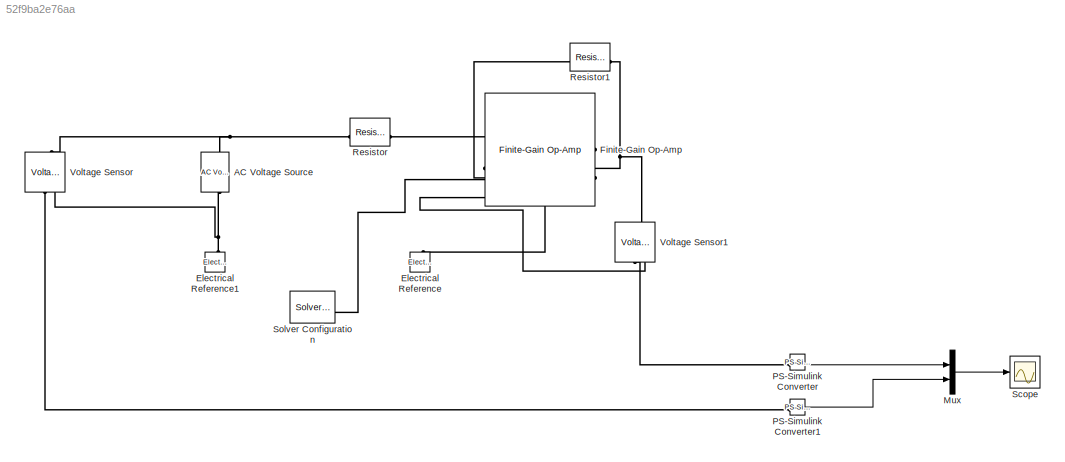
MODEL slx_52f9ba2e76aa
KIND model
CONFIG AbsTol = auto
CONFIG EnableMultiTasking = off
CONFIG FixedStep = auto
CONFIG MaxStep = auto
CONFIG MinStep = auto
CONFIG RelTol = 1e-3
CONFIG SampleTimeConstraint = Unconstrained
CONFIG SolverName = VariableStepAuto
CONFIG StartTime = 0.0
CONFIG StopTime = 10.0
BLOCK [Reference] AC Voltage Source  REF=fl_lib/Electrical/Electrical Sources/AC Voltage Source
  NameLocation = right
  SourceBlock = fl_lib/Electrical/Electrical Sources/AC Voltage Source
  SourceType = AC Voltage Source
BLOCK [Reference] Electrical Reference  REF=fl_lib/Electrical/Electrical Elements/Electrical Reference
  NameLocation = right
  SourceBlock = fl_lib/Electrical/Electrical Elements/Electrical Reference
  SourceType = Electrical Reference
BLOCK [Reference] Electrical Reference1  REF=fl_lib/Electrical/Electrical Elements/Electrical Reference
  NameLocation = right
  SourceBlock = fl_lib/Electrical/Electrical Elements/Electrical Reference
  SourceType = Electrical Reference
BLOCK [Reference] Finite-Gain Op-Amp  REF=ee_lib/Integrated Circuits/Finite-Gain Op-Amp
  SourceBlock = ee_lib/Integrated Circuits/Finite-Gain Op-Amp
  SourceType = Finite-Gain Op-Amp
BLOCK [Mux] Mux
  DisplayOption = bar
  Inputs = 2
BLOCK [Reference] PS-Simulink Converter  REF=nesl_utility/PS-Simulink
Converter
  SourceBlock = nesl_utility/PS-Simulink\nConverter
  SourceType = PS-Simulink\nConverter
BLOCK [Reference] PS-Simulink Converter1  REF=nesl_utility/PS-Simulink
Converter
  SourceBlock = nesl_utility/PS-Simulink\nConverter
  SourceType = PS-Simulink\nConverter
BLOCK [Reference] Resistor  REF=fl_lib/Electrical/Electrical Elements/Resistor
  SourceBlock = fl_lib/Electrical/Electrical Elements/Resistor
  SourceType = Resistor
BLOCK [Reference] Resistor1  REF=fl_lib/Electrical/Electrical Elements/Resistor
  SourceBlock = fl_lib/Electrical/Electrical Elements/Resistor
  SourceType = Resistor
BLOCK [Scope] Scope
  Floating = off
  NumInputPorts = 1
  ScopeSpecificationString = Simulink.scopes.TimeScopeBlockCfg('CurrentConfiguration', extmgr.ConfigurationSet(extmgr.Configuration('Core','General UI',true),extmgr.Configuration('Core','Source UI',true),extmgr.Configuration('Sources','WiredSimulink',true),extmgr.Configuration('Visuals','Time Domain',true,'SerializedDisplays',{struct('MinYLimReal','0.25529','MaxYLimReal','0.69163','YLabelReal','','MinYLimMag','0.25529','MaxYL...<+1412ch>
BLOCK [Reference] Solver Configuration  REF=nesl_utility/Solver
Configuration
  SourceBlock = nesl_utility/Solver\nConfiguration
  SourceType = Solver\nConfiguration
BLOCK [Reference] Voltage Sensor  REF=fl_lib/Electrical/Electrical Sensors/Voltage Sensor
  NameLocation = right
  SourceBlock = fl_lib/Electrical/Electrical Sensors/Voltage Sensor
  SourceType = Voltage Sensor
BLOCK [Reference] Voltage Sensor1  REF=fl_lib/Electrical/Electrical Sensors/Voltage Sensor
  NameLocation = right
  SourceBlock = fl_lib/Electrical/Electrical Sensors/Voltage Sensor
  SourceType = Voltage Sensor
LINE Mux:1 -> Scope:1
LINE PS-Simulink Converter1:1 -> Mux:2
LINE PS-Simulink Converter:1 -> Mux:1
PNET net1: AC Voltage Source:LConn1 -- Resistor:LConn1 -- Voltage Sensor:LConn1
PNET net2: AC Voltage Source:RConn1 -- Electrical Reference1:LConn1 -- Voltage Sensor:RConn2
PNET net3: Electrical Reference:LConn1 -- Finite-Gain Op-Amp:LConn1 -- Solver Configuration:RConn1 -- Voltage Sensor1:RConn2
PNET net4: Finite-Gain Op-Amp:LConn2 -- Resistor1:LConn1 -- Resistor:RConn1
PNET net5: Finite-Gain Op-Amp:RConn1 -- Resistor1:RConn1 -- Voltage Sensor1:LConn1
PLINE PS-Simulink Converter1:LConn1 -- Voltage Sensor:RConn1
PLINE PS-Simulink Converter:LConn1 -- Voltage Sensor1:RConn1
note: PNET lines group multi-terminal physical nets as a canonical sorted terminal list (undirected conserving connections); 2-terminal nets keep the pairwise PLINE form
